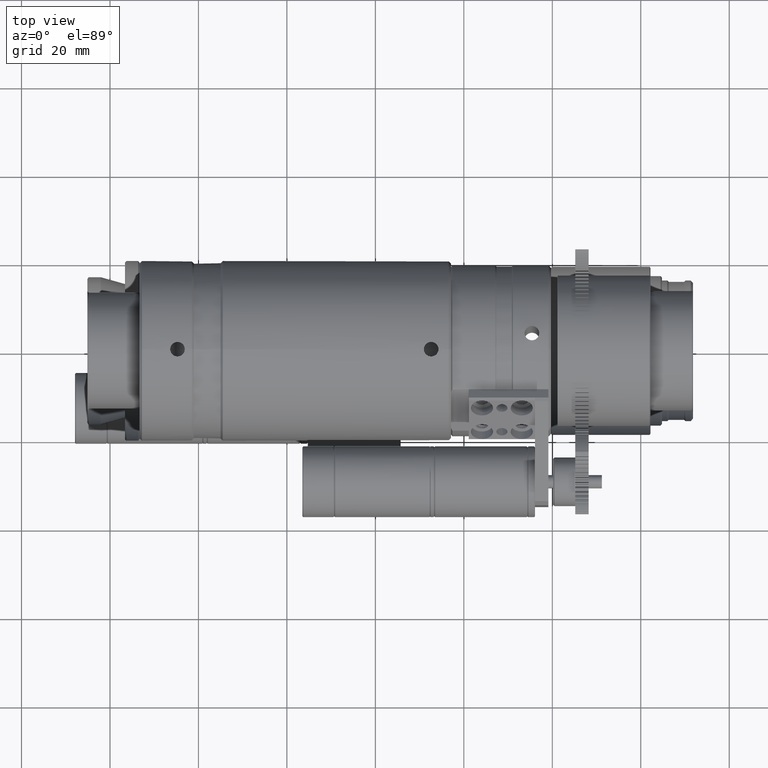
[diagram: clean part render]
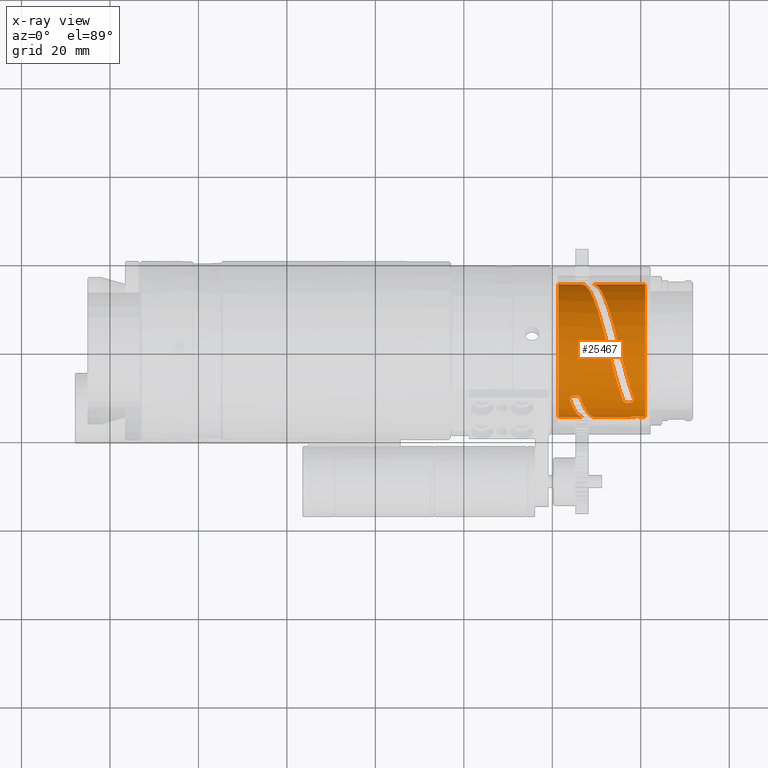
[diagram: x-ray — body ghosted, one internal face saturated and labeled with its STEP entity id]
A machine part, top view, then the same camera in x-ray: the body is ghosted and one INTERNAL B-rep face — a face not visible from any outside direction — is saturated and labeled: STEP entity #25467.
In plain terms, the highlighted cylindrical surface (partial cylindrical patch) has radius 15 mm, axis along (-1, -0, 0).
Its self-contained STEP definition (entity closure, byte-faithful):
#137 = ORIENTED_EDGE ( 'NONE', *, *, #1089, .T. ) ;
#1089 = EDGE_CURVE ( 'NONE', #22983, #17381, #25071, .T. ) ;
#1382 = CARTESIAN_POINT ( 'NONE',  ( 104.5846977468935700, -10.38978256261989100, 10.81953481738620600 ) ) ;
#2110 = CARTESIAN_POINT ( 'NONE',  ( 109.2868157790162900, 15.00000000000000500, -2.274912940403615900E-015 ) ) ;
#2344 = CARTESIAN_POINT ( 'NONE',  ( 115.9884592018784000, -11.35903827506369100, 9.796542730251220000 ) ) ;
#2540 = CIRCLE ( 'NONE', #44731, 15.00000000000000400 ) ;
#2593 = EDGE_CURVE ( 'NONE', #17241, #25830, #15267, .T. ) ;
#2606 = VERTEX_POINT ( 'NONE', #15494 ) ;
#3749 = ORIENTED_EDGE ( 'NONE', *, *, #13954, .T. ) ;
#4355 = EDGE_CURVE ( 'NONE', #15708, #9265, #16713, .T. ) ;
#4979 = CARTESIAN_POINT ( 'NONE',  ( 105.0531261408145300, -10.27927732478911000, 10.92419952631892200 ) ) ;
#7266 = VERTEX_POINT ( 'NONE', #41619 ) ;
#7364 = B_SPLINE_CURVE_WITH_KNOTS ( 'NONE', 3,
 ( #28561, #10919, #31999, #11065, #35353, #14635 ),
 .UNSPECIFIED., .F., .F.,
 ( 4, 2, 4 ),
 ( 0.7734670501482587800, 0.8867335250741293900, 1.000000000000000000 ),
 .UNSPECIFIED. ) ;
#7587 = ORIENTED_EDGE ( 'NONE', *, *, #2593, .T. ) ;
#7730 = CARTESIAN_POINT ( 'NONE',  ( 106.4114584555914100, -10.94708364628576700, 10.25482128762967100 ) ) ;
#8570 = CARTESIAN_POINT ( 'NONE',  ( 105.5437057778429000, -10.30785347142860400, 10.89718897891636700 ) ) ;
#9194 = VECTOR ( 'NONE', #36282, 1000.000000000000000 ) ;
#9265 = VERTEX_POINT ( 'NONE', #9364 ) ;
#9364 = CARTESIAN_POINT ( 'NONE',  ( 101.3999999999636000, -15.00000000000000400, -4.242014097282508000E-015 ) ) ;
#9505 = LINE ( 'NONE', #27731, #9194 ) ;
#9721 = ORIENTED_EDGE ( 'NONE', *, *, #31200, .T. ) ;
#10082 = EDGE_CURVE ( 'NONE', #28526, #25600, #41406, .T. ) ;
#10093 = CYLINDRICAL_SURFACE ( 'NONE', #35650, 15.00000000000000400 ) ;
#10179 = FACE_OUTER_BOUND ( 'NONE', #25145, .T. ) ;
#10391 = CARTESIAN_POINT ( 'NONE',  ( 96.26809995502101500, 4.232843453261935400E-016, -3.226376168255108000E-015 ) ) ;
#10684 = EDGE_CURVE ( 'NONE', #30107, #22983, #26432, .T. ) ;
#10690 = DIRECTION ( 'NONE',  ( -1.000000000000000000, -1.017431794247728300E-016, 6.801799677026722400E-017 ) ) ;
#10919 = CARTESIAN_POINT ( 'NONE',  ( 106.2538051635457500, -15.00000000000000200, 1.779185628296704500 ) ) ;
#10951 = EDGE_CURVE ( 'NONE', #7266, #18093, #11661, .T. ) ;
#11065 = CARTESIAN_POINT ( 'NONE',  ( 104.8946074639228500, -13.44050365446062600, 6.893356440397381500 ) ) ;
#11556 = CARTESIAN_POINT ( 'NONE',  ( 106.7068710634200200, -15.00000000000000200, -7.610340865233810100E-015 ) ) ;
#11661 = LINE ( 'NONE', #22649, #36680 ) ;
#11983 = CARTESIAN_POINT ( 'NONE',  ( 103.9884756641743200, -11.35904220091802200, 9.796538178242526500 ) ) ;
#12146 = CARTESIAN_POINT ( 'NONE',  ( 105.9816191231260200, -10.46985106507902700, 10.74194688355054000 ) ) ;
#12902 = B_SPLINE_CURVE_WITH_KNOTS ( 'NONE', 3,
 ( #20900, #19483, #19733, #19115, #19056, #18960, #18752, #17517, #39296, #16871, #16762, #16816, #16774, #16567, #16186, #15778, #15930, #15817, #15522, #15483, #14781, #14549, #14594, #14485, #14089, #14226, #13985, #13834, #13802, #13526 ),
 .UNSPECIFIED., .F., .F.,
 ( 4, 2, 2, 2, 2, 2, 2, 2, 2, 2, 2, 2, 2, 2, 4 ),
 ( 0.6948394775390628300, 0.7330007553100590400, 0.7711620330810551300, 0.8474845886230482100, 0.8856458663940446300, 0.9238071441650411700, 0.9619684219360377100, 1.000129699707034100, 1.038290977478030700, 1.076452255249027000, 1.114613533020023500, 1.152774810791019800, 1.229097366333010300, 1.267258644104005200, 1.305419921875000000 ),
 .UNSPECIFIED. ) ;
#13513 = CARTESIAN_POINT ( 'NONE',  ( 120.9999999998619400, 2.939586489103991200E-015, -4.908590465627669300E-015 ) ) ;
#13526 = CARTESIAN_POINT ( 'NONE',  ( 120.6102303425630600, -15.00000000000000000, -4.882079114336366000E-015 ) ) ;
#13591 = ORIENTED_EDGE ( 'NONE', *, *, #19523, .T. ) ;
#13802 = CARTESIAN_POINT ( 'NONE',  ( 120.6514216220443000, -15.00000000000000000, 0.1136456108905256200 ) ) ;
#13834 = CARTESIAN_POINT ( 'NONE',  ( 120.6785528863170600, -14.99870349621613000, 0.2302903261582643900 ) ) ;
#13954 = EDGE_CURVE ( 'NONE', #18946, #9265, #41082, .T. ) ;
#13985 = CARTESIAN_POINT ( 'NONE',  ( 120.7041662894280000, -14.99316739127900200, 0.4680510429600990300 ) ) ;
#14089 = CARTESIAN_POINT ( 'NONE',  ( 120.6559348121639800, -14.97206442696655600, 0.9451365886729089500 ) ) ;
#14226 = CARTESIAN_POINT ( 'NONE',  ( 120.7027240908449100, -14.98883633409559700, 0.5905797522917687300 ) ) ;
#14485 = CARTESIAN_POINT ( 'NONE',  ( 120.5655397449061800, -14.95510823992195000, 1.175946548294872100 ) ) ;
#14549 = CARTESIAN_POINT ( 'NONE',  ( 120.2790962569248300, -14.91908173995264500, 1.557988384917242500 ) ) ;
#14594 = CARTESIAN_POINT ( 'NONE',  ( 120.3606484642727400, -14.92835550075637700, 1.467559276858600800 ) ) ;
#14635 = CARTESIAN_POINT ( 'NONE',  ( 103.9884756641743200, -11.35904220091802200, 9.796538178242526500 ) ) ;
#14781 = CARTESIAN_POINT ( 'NONE',  ( 120.0986481357916300, -14.90171857690506700, 1.716132636379761800 ) ) ;
#15221 = VECTOR ( 'NONE', #27096, 1000.000000000000000 ) ;
#15267 = LINE ( 'NONE', #15673, #17078 ) ;
#15483 = CARTESIAN_POINT ( 'NONE',  ( 120.0004366478814600, -14.89373694927431300, 1.783164459720139700 ) ) ;
#15494 = CARTESIAN_POINT ( 'NONE',  ( 103.9884756641743200, -11.35904220091802200, 9.796538178242526500 ) ) ;
#15522 = CARTESIAN_POINT ( 'NONE',  ( 119.7880388173740200, -14.88014404133629200, 1.893248296888710500 ) ) ;
#15539 = DIRECTION ( 'NONE',  ( -1.000000000000000000, -1.017431794247728300E-016, 6.801799677026722400E-017 ) ) ;
#15541 = CARTESIAN_POINT ( 'NONE',  ( 103.9391737254075700, -11.14582443983510800, 10.03979443665966000 ) ) ;
#15669 = EDGE_CURVE ( 'NONE', #22481, #18093, #12902, .T. ) ;
#15673 = CARTESIAN_POINT ( 'NONE',  ( 96.26809995502101500, 15.00000000000000400, -1.389405969534078000E-015 ) ) ;
#15689 = CARTESIAN_POINT ( 'NONE',  ( 106.3005825689760800, -10.73509265165835900, 10.47737735076071700 ) ) ;
#15708 = VERTEX_POINT ( 'NONE', #11556 ) ;
#15757 = CARTESIAN_POINT ( 'NONE',  ( 117.7897977937568000, -15.00000000000000000, -4.690238942340905700E-015 ) ) ;
#15778 = CARTESIAN_POINT ( 'NONE',  ( 119.3228465522538200, -14.86504597769187800, 2.007587632178636100 ) ) ;
#15817 = CARTESIAN_POINT ( 'NONE',  ( 119.6733500276202600, -14.87449966706679500, 1.936512486579683400 ) ) ;
#15930 = CARTESIAN_POINT ( 'NONE',  ( 119.4415898599346700, -14.86699306908047200, 1.993323365679173600 ) ) ;
#16085 = ORIENTED_EDGE ( 'NONE', *, *, #15669, .T. ) ;
#16186 = CARTESIAN_POINT ( 'NONE',  ( 119.0796334892161600, -14.86500833790946900, 2.007866313690252800 ) ) ;
#16567 = CARTESIAN_POINT ( 'NONE',  ( 118.9605411476197500, -14.86693344540386800, 1.993767297885369100 ) ) ;
#16644 = ORIENTED_EDGE ( 'NONE', *, *, #36212, .T. ) ;
#16713 = LINE ( 'NONE', #27092, #15221 ) ;
#16762 = CARTESIAN_POINT ( 'NONE',  ( 118.4005630780574400, -14.89366296920555600, 1.783779513067862900 ) ) ;
#16774 = CARTESIAN_POINT ( 'NONE',  ( 118.7281415620462900, -14.87442889268095500, 1.937055297291032200 ) ) ;
#16816 = CARTESIAN_POINT ( 'NONE',  ( 118.6130225432150500, -14.88008787171038900, 1.893687123498196500 ) ) ;
#16871 = CARTESIAN_POINT ( 'NONE',  ( 118.3023433676654000, -14.90163307945721800, 1.716867806182381400 ) ) ;
#17064 = DIRECTION ( 'NONE',  ( 0.0000000000000000000, -1.000000000000000000, 0.0000000000000000000 ) ) ;
#17078 = VECTOR ( 'NONE', #15539, 1000.000000000000000 ) ;
#17241 = VERTEX_POINT ( 'NONE', #34618 ) ;
#17381 = VERTEX_POINT ( 'NONE', #31612 ) ;
#17517 = CARTESIAN_POINT ( 'NONE',  ( 118.0401710136003700, -14.92825874282093700, 1.468543332924251900 ) ) ;
#17778 = EDGE_CURVE ( 'NONE', #25830, #30107, #19958, .T. ) ;
#18080 = CARTESIAN_POINT ( 'NONE',  ( 120.6102303425630600, -15.00000000000000000, -4.882079114336366000E-015 ) ) ;
#18093 = VERTEX_POINT ( 'NONE', #18080 ) ;
#18257 = CARTESIAN_POINT ( 'NONE',  ( 109.4139903605977700, 11.44946705236125000, 9.808983133488133900 ) ) ;
#18505 = ORIENTED_EDGE ( 'NONE', *, *, #17778, .T. ) ;
#18752 = CARTESIAN_POINT ( 'NONE',  ( 117.8348981207409200, -14.95503125970830300, 1.176925857601665200 ) ) ;
#18946 = VERTEX_POINT ( 'NONE', #39522 ) ;
#18960 = CARTESIAN_POINT ( 'NONE',  ( 117.7442367340234200, -14.97202265575841600, 0.9458715142324877200 ) ) ;
#19056 = CARTESIAN_POINT ( 'NONE',  ( 117.6972680307584900, -14.98882583524219600, 0.5908755471933748700 ) ) ;
#19082 = CARTESIAN_POINT ( 'NONE',  ( 104.0408957834549400, -10.81795801311912300, 10.39192531598399700 ) ) ;
#19115 = CARTESIAN_POINT ( 'NONE',  ( 117.6958300182308500, -14.99315776547994600, 0.4683548640517485300 ) ) ;
#19243 = CARTESIAN_POINT ( 'NONE',  ( 106.4114584555914100, -10.94708364628576700, 10.25482128762967100 ) ) ;
#19483 = CARTESIAN_POINT ( 'NONE',  ( 117.7485011085991400, -15.00000000000000200, 0.1141205782910385800 ) ) ;
#19523 = EDGE_CURVE ( 'NONE', #2606, #28526, #35675, .T. ) ;
#19733 = CARTESIAN_POINT ( 'NONE',  ( 117.7214482164623900, -14.99869815282792200, 0.2306290953215333300 ) ) ;
#19958 = B_SPLINE_CURVE_WITH_KNOTS ( 'NONE', 3,
 ( #23271, #23308, #23203, #23151, #23111, #23100, #23048, #23041, #22990, #22952, #22942, #22893, #22884, #22799, #22791, #22733, #22685, #22648 ),
 .UNSPECIFIED., .F., .F.,
 ( 4, 2, 2, 2, 2, 2, 2, 2, 4 ),
 ( 0.2396102643599895800, 0.3346589813149908300, 0.4297076982699921100, 0.5247564152249933900, 0.6198051321799946700, 0.7148538491349959400, 0.8099025660899972200, 0.9049512830449986100, 1.000000000000000000 ),
 .UNSPECIFIED. ) ;
#20900 = CARTESIAN_POINT ( 'NONE',  ( 117.7897977937568000, -15.00000000000000000, -4.690238942340905700E-015 ) ) ;
#22481 = VERTEX_POINT ( 'NONE', #15757 ) ;
#22585 = DIRECTION ( 'NONE',  ( -1.000000000000000000, -1.017431794247728300E-016, 6.801799677026722400E-017 ) ) ;
#22623 = CARTESIAN_POINT ( 'NONE',  ( 104.3188068652466000, -10.53250923264223900, 10.68064439195776300 ) ) ;
#22648 = CARTESIAN_POINT ( 'NONE',  ( 118.4114442007856100, -10.94708547141622600, 10.25481933929153500 ) ) ;
#22649 = CARTESIAN_POINT ( 'NONE',  ( 96.26809995502101500, -15.00000000000000400, -3.226376168255108000E-015 ) ) ;
#22685 = CARTESIAN_POINT ( 'NONE',  ( 118.0312513498785400, -9.926374582069501100, 11.34443476571559600 ) ) ;
#22733 = CARTESIAN_POINT ( 'NONE',  ( 117.6510584989714800, -8.741918430760570400, 12.28038984100508400 ) ) ;
#22791 = CARTESIAN_POINT ( 'NONE',  ( 116.8906727971573900, -6.149733265968635000, 13.76262668441496800 ) ) ;
#22799 = CARTESIAN_POINT ( 'NONE',  ( 116.5104799462503400, -4.742346274652018000, 14.30871288091372400 ) ) ;
#22884 = CARTESIAN_POINT ( 'NONE',  ( 115.7500942444362600, -1.828816324596464400, 14.96277191392095100 ) ) ;
#22893 = CARTESIAN_POINT ( 'NONE',  ( 115.3699013935291900, -0.3230577874022730300, 15.07065845154520500 ) ) ;
#22942 = CARTESIAN_POINT ( 'NONE',  ( 114.6095156917150600, 2.653958067420661300, 14.83865287259948600 ) ) ;
#22952 = CARTESIAN_POINT ( 'NONE',  ( 114.2293228408080400, 4.124822586947700200, 14.49879136767400400 ) ) ;
#22983 = VERTEX_POINT ( 'NONE', #2344 ) ;
#22990 = CARTESIAN_POINT ( 'NONE',  ( 113.4689371389938900, 6.901846713322141700, 13.40125458466246000 ) ) ;
#23041 = CARTESIAN_POINT ( 'NONE',  ( 113.0887442880868900, 8.207639909690582800, 12.64372411949844900 ) ) ;
#23048 = CARTESIAN_POINT ( 'NONE',  ( 112.3283585862727400, 10.53889473037751000, 10.77779246224167200 ) ) ;
#23100 = CARTESIAN_POINT ( 'NONE',  ( 111.9481657353656600, 11.56404876061092000, 9.669637467834325800 ) ) ;
#23111 = CARTESIAN_POINT ( 'NONE',  ( 111.1877800335515600, 13.24320903834880500, 7.200453240159872000 ) ) ;
#23151 = CARTESIAN_POINT ( 'NONE',  ( 110.8075871826445000, 13.89699373145059100, 5.839749799876315700 ) ) ;
#23203 = CARTESIAN_POINT ( 'NONE',  ( 110.0472014808304100, 14.77544716541754100, 2.985845535034774100 ) ) ;
#23271 = CARTESIAN_POINT ( 'NONE',  ( 109.2868157790162900, 15.00000000000000500, -2.274912940403615900E-015 ) ) ;
#23308 = CARTESIAN_POINT ( 'NONE',  ( 109.6670086299233700, 15.00000000000000700, 1.493021264795737300 ) ) ;
#23635 = ORIENTED_EDGE ( 'NONE', *, *, #4355, .F. ) ;
#24153 = VECTOR ( 'NONE', #10690, 1000.000000000000000 ) ;
#24411 = LINE ( 'NONE', #34988, #24153 ) ;
#25071 = B_SPLINE_CURVE_WITH_KNOTS ( 'NONE', 3,
 ( #43214, #42760, #43112, #42673, #42533, #42294, #42440, #42156, #42046, #42010, #40854, #41919, #18257, #41870, #41150, #40958, #40760, #40212 ),
 .UNSPECIFIED., .F., .F.,
 ( 4, 2, 2, 2, 2, 2, 2, 2, 4 ),
 ( 0.0000000000000000000, 0.09668336529472611200, 0.1933667305894521700, 0.2900500958841782400, 0.3867334611789042800, 0.4834168264736303800, 0.5801001917683563700, 0.6767835570630823500, 0.7734669223578083400 ),
 .UNSPECIFIED. ) ;
#25145 = EDGE_LOOP ( 'NONE', ( #16644, #7587, #18505, #42877, #137, #32770, #3749, #23635, #9721, #13591, #43407, #44347, #16085, #34928 ) ) ;
#25467 = ADVANCED_FACE ( 'NONE', ( #10179 ), #10093, .T. ) ;
#25600 = VERTEX_POINT ( 'NONE', #39970 ) ;
#25701 = EDGE_CURVE ( 'NONE', #17381, #18946, #9505, .T. ) ;
#25830 = VERTEX_POINT ( 'NONE', #2110 ) ;
#26141 = CARTESIAN_POINT ( 'NONE',  ( 104.7316139654741400, -10.33878231959116300, 10.86790033809931800 ) ) ;
#26432 = B_SPLINE_CURVE_WITH_KNOTS ( 'NONE', 3,
 ( #29552, #29660, #29401, #29361, #29349, #29308, #29253, #29205, #29166, #29162, #29068, #29020, #29013, #28926, #28882, #28876, #28745, #28682 ),
 .UNSPECIFIED., .F., .F.,
 ( 4, 2, 2, 2, 2, 2, 2, 2, 4 ),
 ( 0.0000000000000000000, 0.1250000000000000000, 0.2500000000000000000, 0.3750000000000000000, 0.5000000000000000000, 0.6250000000000000000, 0.7500000000000000000, 0.8750000000000000000, 1.000000000000000000 ),
 .UNSPECIFIED. ) ;
#27092 = CARTESIAN_POINT ( 'NONE',  ( 96.26809995502101500, -15.00000000000000400, -3.226376168255108000E-015 ) ) ;
#27096 = DIRECTION ( 'NONE',  ( -1.000000000000000000, -1.017431794247728300E-016, 6.801799677026722400E-017 ) ) ;
#27731 = CARTESIAN_POINT ( 'NONE',  ( 96.26809995502101500, 15.00000000000000400, -1.389405969534078000E-015 ) ) ;
#28526 = VERTEX_POINT ( 'NONE', #7730 ) ;
#28561 = CARTESIAN_POINT ( 'NONE',  ( 106.7068710634200200, -15.00000000000000200, -7.610340865233810100E-015 ) ) ;
#28682 = CARTESIAN_POINT ( 'NONE',  ( 115.9884592018784000, -11.35903827506369100, 9.796542730251220000 ) ) ;
#28745 = CARTESIAN_POINT ( 'NONE',  ( 116.0294303051137800, -11.46398730636111000, 9.674854896465015800 ) ) ;
#28876 = CARTESIAN_POINT ( 'NONE',  ( 116.0994568807592900, -11.55788376659573100, 9.562058313144673200 ) ) ;
#28882 = CARTESIAN_POINT ( 'NONE',  ( 116.2976209768707000, -11.72537334600158400, 9.355920919021915700 ) ) ;
#28926 = CARTESIAN_POINT ( 'NONE',  ( 116.4183808885693700, -11.79276554372915500, 9.270268874426808000 ) ) ;
#29013 = CARTESIAN_POINT ( 'NONE',  ( 116.7028422165169100, -11.89691854731675300, 9.136220950263997100 ) ) ;
#29020 = CARTESIAN_POINT ( 'NONE',  ( 116.8562942302793200, -11.92993191440689000, 9.092705612094780700 ) ) ;
#29068 = CARTESIAN_POINT ( 'NONE',  ( 117.1840686281148300, -11.95883710559557200, 9.054655482812945500 ) ) ;
#29162 = CARTESIAN_POINT ( 'NONE',  ( 117.3468738610567900, -11.95375604196130000, 9.061423403636929700 ) ) ;
#29166 = CARTESIAN_POINT ( 'NONE',  ( 117.6683860321829700, -11.90409233857358900, 9.126569081830197700 ) ) ;
#29205 = CARTESIAN_POINT ( 'NONE',  ( 117.8153022489586900, -11.86141456421621500, 9.182415798609451200 ) ) ;
#29253 = CARTESIAN_POINT ( 'NONE',  ( 118.0811931280658200, -11.73846156486963100, 9.339081081821246900 ) ) ;
#29308 = CARTESIAN_POINT ( 'NONE',  ( 118.1897217821708600, -11.66310073621590200, 9.433578778104005000 ) ) ;
#29349 = CARTESIAN_POINT ( 'NONE',  ( 118.3591042100919100, -11.48167867358544200, 9.653568365239220100 ) ) ;
#29361 = CARTESIAN_POINT ( 'NONE',  ( 118.4133294408048600, -11.38260346476096400, 9.770527781917456500 ) ) ;
#29401 = CARTESIAN_POINT ( 'NONE',  ( 118.4608262738053200, -11.16634559097505400, 10.01696565413505100 ) ) ;
#29439 = CARTESIAN_POINT ( 'NONE',  ( 103.9476671305778100, -11.25400495190031700, 9.918328398680831300 ) ) ;
#29552 = CARTESIAN_POINT ( 'NONE',  ( 118.4114442007856100, -10.94708547141622600, 10.25481933929153500 ) ) ;
#29595 = CARTESIAN_POINT ( 'NONE',  ( 105.2159313760330800, -10.27308708078228100, 10.92997038702865400 ) ) ;
#29660 = CARTESIAN_POINT ( 'NONE',  ( 118.4523155766393200, -11.05700173562256300, 10.13748302168765200 ) ) ;
#30107 = VERTEX_POINT ( 'NONE', #39110 ) ;
#31200 = EDGE_CURVE ( 'NONE', #15708, #2606, #7364, .T. ) ;
#31297 = AXIS2_PLACEMENT_3D ( 'NONE', #45028, #44827, #44737 ) ;
#31345 = DIRECTION ( 'NONE',  ( 0.0000000000000000000, -1.000000000000000000, 0.0000000000000000000 ) ) ;
#31612 = CARTESIAN_POINT ( 'NONE',  ( 106.7068561318351200, 15.00000000000000500, 1.122324704204765500E-014 ) ) ;
#31999 = CARTESIAN_POINT ( 'NONE',  ( 105.8007392636714500, -14.68015185047988400, 3.557898698219185800 ) ) ;
#32770 = ORIENTED_EDGE ( 'NONE', *, *, #25701, .T. ) ;
#33026 = CARTESIAN_POINT ( 'NONE',  ( 105.6971577933387300, -10.34761804240966900, 10.85974240128905800 ) ) ;
#34618 = CARTESIAN_POINT ( 'NONE',  ( 120.9999999998619400, 15.00000000000000700, -2.405043898561478000E-015 ) ) ;
#34928 = ORIENTED_EDGE ( 'NONE', *, *, #10951, .F. ) ;
#34988 = CARTESIAN_POINT ( 'NONE',  ( 96.26809995502101500, -15.00000000000000400, -3.226376168255108000E-015 ) ) ;
#35353 = CARTESIAN_POINT ( 'NONE',  ( 104.4415415640486100, -12.52103286317063500, 8.449215202569913400 ) ) ;
#35650 = AXIS2_PLACEMENT_3D ( 'NONE', #10391, #38046, #31345 ) ;
#35675 = B_SPLINE_CURVE_WITH_KNOTS ( 'NONE', 3,
 ( #11983, #29439, #15541, #39625, #19082, #43073, #22623, #1382, #26141, #4979, #29595, #8570, #33026, #12146, #36341, #15689, #39771, #19243 ),
 .UNSPECIFIED., .F., .F.,
 ( 4, 2, 2, 2, 2, 2, 2, 2, 4 ),
 ( 0.0000000000000000000, 0.1250000000000000000, 0.2500000000000000000, 0.3750000000000000000, 0.5000000000000000000, 0.6250000000000000000, 0.7500000000000000000, 0.8750000000000000000, 1.000000000000000000 ),
 .UNSPECIFIED. ) ;
#36212 = EDGE_CURVE ( 'NONE', #7266, #17241, #2540, .T. ) ;
#36282 = DIRECTION ( 'NONE',  ( -1.000000000000000000, -1.017431794247728300E-016, 6.801799677026722400E-017 ) ) ;
#36341 = CARTESIAN_POINT ( 'NONE',  ( 106.1023395958926200, -10.54782714681093100, 10.66587984513802400 ) ) ;
#36680 = VECTOR ( 'NONE', #22585, 1000.000000000000000 ) ;
#37619 = DIRECTION ( 'NONE',  ( -1.000000000000000000, -1.017431794247728300E-016, 6.801799677026722400E-017 ) ) ;
#38046 = DIRECTION ( 'NONE',  ( -1.000000000000000000, -1.017431794247728300E-016, 6.801799677026722400E-017 ) ) ;
#39110 = CARTESIAN_POINT ( 'NONE',  ( 118.4114442007856100, -10.94708547141622600, 10.25481933929153500 ) ) ;
#39296 = CARTESIAN_POINT ( 'NONE',  ( 118.1219239912548200, -14.91897230431411400, 1.559028185052345100 ) ) ;
#39522 = CARTESIAN_POINT ( 'NONE',  ( 101.3999999999636000, 15.00000000000000500, -2.405043898561478000E-015 ) ) ;
#39625 = CARTESIAN_POINT ( 'NONE',  ( 103.9866705539257300, -10.92373818199082100, 10.28099308945024000 ) ) ;
#39771 = CARTESIAN_POINT ( 'NONE',  ( 106.3705816933617600, -10.83727506477537300, 10.37204261144975000 ) ) ;
#39970 = CARTESIAN_POINT ( 'NONE',  ( 109.2867853011627200, -15.00000000000000200, -4.111881066082099300E-015 ) ) ;
#40212 = CARTESIAN_POINT ( 'NONE',  ( 106.7068561318351200, 15.00000000000000500, 1.122324704204765500E-014 ) ) ;
#40760 = CARTESIAN_POINT ( 'NONE',  ( 107.0935895930869500, 15.00000000000000900, 1.518698750957679000 ) ) ;
#40854 = CARTESIAN_POINT ( 'NONE',  ( 110.5741907443531600, 7.991586450662524900, 12.78440424492856700 ) ) ;
#40958 = CARTESIAN_POINT ( 'NONE',  ( 107.4803230543387400, 14.76759849408292700, 3.037183006293879800 ) ) ;
#41058 = EDGE_CURVE ( 'NONE', #22481, #25600, #24411, .T. ) ;
#41082 = CIRCLE ( 'NONE', #31297, 15.00000000000000400 ) ;
#41150 = CARTESIAN_POINT ( 'NONE',  ( 108.2537899768423400, 13.85914068852369300, 5.935542542334904900 ) ) ;
#41406 = B_SPLINE_CURVE_WITH_KNOTS ( 'NONE', 3,
 ( #43287, #43392, #43234, #43182, #43139, #43096 ),
 .UNSPECIFIED., .F., .F.,
 ( 4, 2, 4 ),
 ( 0.0000000000000000000, 0.1198052850965532600, 0.2396105701931065300 ),
 .UNSPECIFIED. ) ;
#41619 = CARTESIAN_POINT ( 'NONE',  ( 120.9999999998619400, -15.00000000000000000, -4.242014097282508000E-015 ) ) ;
#41870 = CARTESIAN_POINT ( 'NONE',  ( 108.6405234380941500, 13.18321269623772600, 7.315008469025644700 ) ) ;
#41919 = CARTESIAN_POINT ( 'NONE',  ( 109.8007238218495600, 10.39189426885211500, 10.92313963112982500 ) ) ;
#42010 = CARTESIAN_POINT ( 'NONE',  ( 110.9609242056049700, 6.649190426939204800, 13.53124948267750900 ) ) ;
#42046 = CARTESIAN_POINT ( 'NONE',  ( 111.7343911281085700, 3.802070346196686900, 14.58940392815046400 ) ) ;
#42156 = CARTESIAN_POINT ( 'NONE',  ( 112.1211245893603900, 2.297748406312773600, 14.90056368589616500 ) ) ;
#42294 = CARTESIAN_POINT ( 'NONE',  ( 113.2813249731157900, -2.264054137954818900, 14.90572053798708300 ) ) ;
#42440 = CARTESIAN_POINT ( 'NONE',  ( 112.8945915118639800, -0.7355280403628323700, 15.05873316046208500 ) ) ;
#42533 = CARTESIAN_POINT ( 'NONE',  ( 114.0547918956193900, -5.205788304394058500, 14.14942451218403000 ) ) ;
#42673 = CARTESIAN_POINT ( 'NONE',  ( 114.4415253568711400, -6.618580893148361200, 13.54624792542243500 ) ) ;
#42760 = CARTESIAN_POINT ( 'NONE',  ( 115.6017257406266100, -10.36717179452129800, 10.94660654627918500 ) ) ;
#42877 = ORIENTED_EDGE ( 'NONE', *, *, #10684, .T. ) ;
#43073 = CARTESIAN_POINT ( 'NONE',  ( 104.2102782106404000, -10.61847224523576500, 10.59567716211451400 ) ) ;
#43096 = CARTESIAN_POINT ( 'NONE',  ( 109.2867853011627200, -15.00000000000000200, -4.111881066082099300E-015 ) ) ;
#43112 = CARTESIAN_POINT ( 'NONE',  ( 115.2149922793747800, -9.199454894954010700, 11.94472584582279500 ) ) ;
#43139 = CARTESIAN_POINT ( 'NONE',  ( 108.8075641602341800, -15.00000000000000400, 1.881897019736050500 ) ) ;
#43182 = CARTESIAN_POINT ( 'NONE',  ( 108.3283430193056100, -14.64172451108111700, 3.763168842145924800 ) ) ;
#43214 = CARTESIAN_POINT ( 'NONE',  ( 115.9884592018784000, -11.35903827506369100, 9.796542730251220000 ) ) ;
#43234 = CARTESIAN_POINT ( 'NONE',  ( 107.3699007374485300, -13.25832046000402500, 7.263502940918393800 ) ) ;
#43287 = CARTESIAN_POINT ( 'NONE',  ( 106.4114584555914100, -10.94708364628576700, 10.25482128762967100 ) ) ;
#43392 = CARTESIAN_POINT ( 'NONE',  ( 106.8906795965199700, -12.23365148756017400, 8.881402348379902300 ) ) ;
#43407 = ORIENTED_EDGE ( 'NONE', *, *, #10082, .T. ) ;
#44347 = ORIENTED_EDGE ( 'NONE', *, *, #41058, .F. ) ;
#44731 = AXIS2_PLACEMENT_3D ( 'NONE', #13513, #37619, #17064 ) ;
#44737 = DIRECTION ( 'NONE',  ( 0.0000000000000000000, -1.000000000000000000, 0.0000000000000000000 ) ) ;
#44827 = DIRECTION ( 'NONE',  ( 1.000000000000000000, 1.017431794247728300E-016, -6.801799677026722400E-017 ) ) ;
#45028 = CARTESIAN_POINT ( 'NONE',  ( 101.3999999999636000, 9.454201723887866400E-016, -3.575437728937346800E-015 ) ) ;